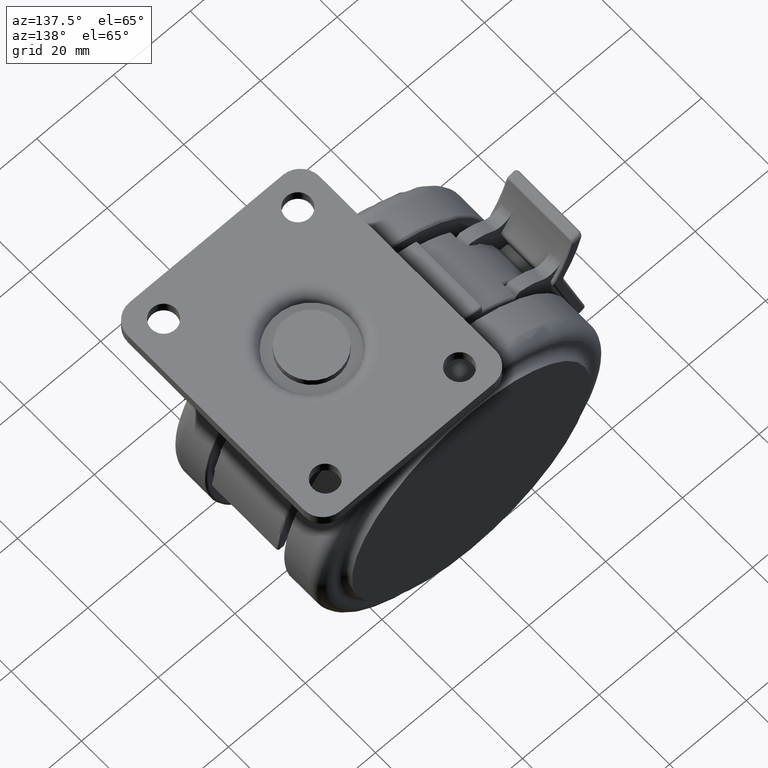
[diagram: clean part render]
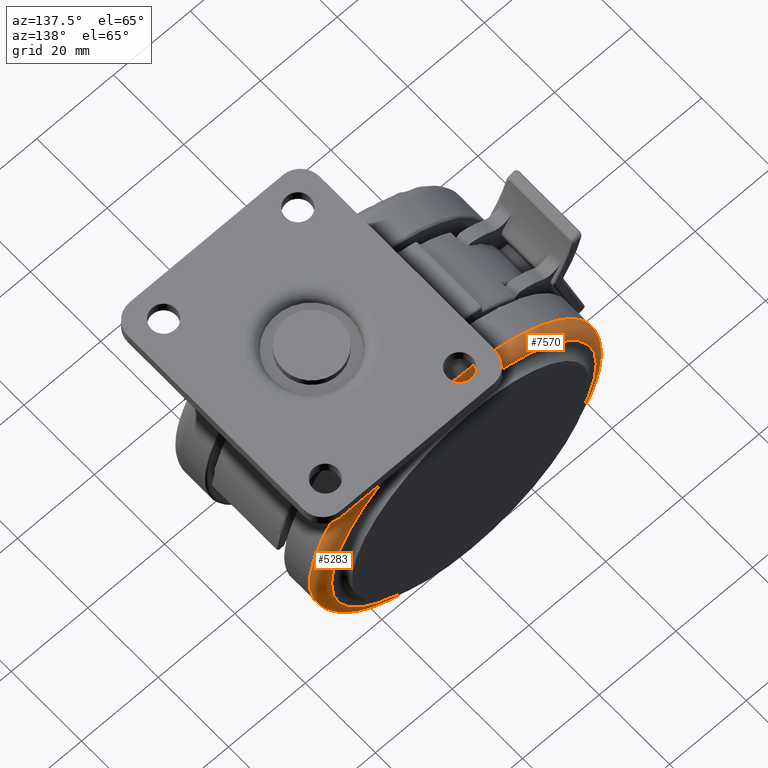
[diagram: same view with one multi-face feature highlighted, each face labeled with its STEP entity id]
A machine part, auxiliary view. The highlighted faces form ONE feature: a constant-radius fillet chain: 2 tangent blend faces with common blend radius 3 mm. The faces share edges in the B-rep.
Their STEP definitions:
[1] entity #7570 (Torus):
#105 = CARTESIAN_POINT ( 'NONE',  ( -20.00000000000000000, 18.50000000000000000, -78.00000000000001400 ) ) ;
#208 = CARTESIAN_POINT ( 'NONE',  ( -20.00000000000000400, 18.50000000000000000, -3.000000000000000400 ) ) ;
#523 = CARTESIAN_POINT ( 'NONE',  ( -20.00000000000000000, 18.50000000000000000, -75.00000000000001400 ) ) ;
#1100 = AXIS2_PLACEMENT_3D ( 'NONE', #8015, #5899, #3820 ) ;
#1233 = DIRECTION ( 'NONE',  ( 1.156482317317871700E-015, 1.000000000000000000, 0.0000000000000000000 ) ) ;
#1311 = ORIENTED_EDGE ( 'NONE', *, *, #5224, .T. ) ;
#1803 = ORIENTED_EDGE ( 'NONE', *, *, #4070, .F. ) ;
#2438 = CIRCLE ( 'NONE', #2877, 37.50000000000000000 ) ;
#2441 = VERTEX_POINT ( 'NONE', #7446 ) ;
#2710 = CARTESIAN_POINT ( 'NONE',  ( -20.00000000000000000, 21.50000000000000000, -40.50000000000000000 ) ) ;
#2829 = VERTEX_POINT ( 'NONE', #5844 ) ;
#2877 = AXIS2_PLACEMENT_3D ( 'NONE', #7774, #3570, #8490 ) ;
#3210 = TOROIDAL_SURFACE ( 'NONE', #1100, 34.50000000000000000, 3.000000000000000000 ) ;
#3277 = EDGE_LOOP ( 'NONE', ( #4675, #1311, #8397, #1803 ) ) ;
#3295 = CIRCLE ( 'NONE', #3432, 34.50000000000000700 ) ;
#3338 = DIRECTION ( 'NONE',  ( -1.000000000000000000, 1.505161159488250100E-015, -1.224646799147353200E-016 ) ) ;
#3411 = DIRECTION ( 'NONE',  ( 0.0000000000000000000, 0.0000000000000000000, -1.000000000000000000 ) ) ;
#3432 = AXIS2_PLACEMENT_3D ( 'NONE', #2710, #7616, #3411 ) ;
#3570 = DIRECTION ( 'NONE',  ( -1.505161159488250100E-015, -1.000000000000000000, 0.0000000000000000000 ) ) ;
#3820 = DIRECTION ( 'NONE',  ( 0.0000000000000000000, 0.0000000000000000000, -1.000000000000000000 ) ) ;
#4070 = EDGE_CURVE ( 'NONE', #6059, #2441, #8981, .T. ) ;
#4675 = ORIENTED_EDGE ( 'NONE', *, *, #8753, .F. ) ;
#5224 = EDGE_CURVE ( 'NONE', #5571, #2829, #8747, .T. ) ;
#5443 = DIRECTION ( 'NONE',  ( 1.000000000000000000, -1.505161159488250100E-015, 0.0000000000000000000 ) ) ;
#5571 = VERTEX_POINT ( 'NONE', #208 ) ;
#5816 = EDGE_CURVE ( 'NONE', #2829, #2441, #3295, .T. ) ;
#5844 = CARTESIAN_POINT ( 'NONE',  ( -20.00000000000000400, 21.50000000000000000, -5.999999999999998200 ) ) ;
#5899 = DIRECTION ( 'NONE',  ( 1.505161159488250100E-015, 1.000000000000000000, 0.0000000000000000000 ) ) ;
#6038 = AXIS2_PLACEMENT_3D ( 'NONE', #523, #5443, #1233 ) ;
#6059 = VERTEX_POINT ( 'NONE', #105 ) ;
#7446 = CARTESIAN_POINT ( 'NONE',  ( -20.00000000000000000, 21.50000000000000000, -75.00000000000001400 ) ) ;
#7531 = CARTESIAN_POINT ( 'NONE',  ( -20.00000000000000400, 18.50000000000000000, -5.999999999999998200 ) ) ;
#7570 = ADVANCED_FACE ( 'NONE', ( #8818 ), #3210, .T. ) ;
#7616 = DIRECTION ( 'NONE',  ( -1.505161159488250100E-015, -1.000000000000000000, 0.0000000000000000000 ) ) ;
#7721 = AXIS2_PLACEMENT_3D ( 'NONE', #7531, #3338, #8244 ) ;
#7774 = CARTESIAN_POINT ( 'NONE',  ( -20.00000000000000000, 18.50000000000000000, -40.50000000000000000 ) ) ;
#8015 = CARTESIAN_POINT ( 'NONE',  ( -20.00000000000000000, 18.50000000000000000, -40.50000000000000000 ) ) ;
#8244 = DIRECTION ( 'NONE',  ( -1.156482317317871700E-015, -1.000000000000000000, 0.0000000000000000000 ) ) ;
#8397 = ORIENTED_EDGE ( 'NONE', *, *, #5816, .T. ) ;
#8490 = DIRECTION ( 'NONE',  ( 0.0000000000000000000, 0.0000000000000000000, -1.000000000000000000 ) ) ;
#8747 = CIRCLE ( 'NONE', #7721, 2.999999999999999100 ) ;
#8753 = EDGE_CURVE ( 'NONE', #5571, #6059, #2438, .T. ) ;
#8818 = FACE_OUTER_BOUND ( 'NONE', #3277, .T. ) ;
#8981 = CIRCLE ( 'NONE', #6038, 2.999999999999999100 ) ;
[2] entity #5283 (Torus):
#105 = CARTESIAN_POINT ( 'NONE',  ( -20.00000000000000000, 18.50000000000000000, -78.00000000000001400 ) ) ;
#208 = CARTESIAN_POINT ( 'NONE',  ( -20.00000000000000400, 18.50000000000000000, -3.000000000000000400 ) ) ;
#497 = CARTESIAN_POINT ( 'NONE',  ( -20.00000000000000000, 21.50000000000000000, -40.50000000000000000 ) ) ;
#523 = CARTESIAN_POINT ( 'NONE',  ( -20.00000000000000000, 18.50000000000000000, -75.00000000000001400 ) ) ;
#566 = DIRECTION ( 'NONE',  ( 1.505161159488250100E-015, 1.000000000000000000, 0.0000000000000000000 ) ) ;
#572 = ORIENTED_EDGE ( 'NONE', *, *, #5224, .F. ) ;
#640 = DIRECTION ( 'NONE',  ( 0.0000000000000000000, 0.0000000000000000000, -1.000000000000000000 ) ) ;
#920 = EDGE_CURVE ( 'NONE', #6059, #5571, #6273, .T. ) ;
#965 = AXIS2_PLACEMENT_3D ( 'NONE', #2666, #566, #6183 ) ;
#1045 = TOROIDAL_SURFACE ( 'NONE', #965, 34.50000000000000000, 3.000000000000000000 ) ;
#1207 = DIRECTION ( 'NONE',  ( 0.0000000000000000000, 0.0000000000000000000, -1.000000000000000000 ) ) ;
#1233 = DIRECTION ( 'NONE',  ( 1.156482317317871700E-015, 1.000000000000000000, 0.0000000000000000000 ) ) ;
#2441 = VERTEX_POINT ( 'NONE', #7446 ) ;
#2666 = CARTESIAN_POINT ( 'NONE',  ( -20.00000000000000000, 18.50000000000000000, -40.50000000000000000 ) ) ;
#2829 = VERTEX_POINT ( 'NONE', #5844 ) ;
#3338 = DIRECTION ( 'NONE',  ( -1.000000000000000000, 1.505161159488250100E-015, -1.224646799147353200E-016 ) ) ;
#3365 = ORIENTED_EDGE ( 'NONE', *, *, #4070, .T. ) ;
#3621 = EDGE_CURVE ( 'NONE', #2441, #2829, #4594, .T. ) ;
#4070 = EDGE_CURVE ( 'NONE', #6059, #2441, #8981, .T. ) ;
#4594 = CIRCLE ( 'NONE', #7791, 34.50000000000000700 ) ;
#4853 = DIRECTION ( 'NONE',  ( -1.505161159488250100E-015, -1.000000000000000000, 0.0000000000000000000 ) ) ;
#4949 = ORIENTED_EDGE ( 'NONE', *, *, #3621, .T. ) ;
#5224 = EDGE_CURVE ( 'NONE', #5571, #2829, #8747, .T. ) ;
#5283 = ADVANCED_FACE ( 'NONE', ( #8074 ), #1045, .T. ) ;
#5418 = DIRECTION ( 'NONE',  ( -1.505161159488250100E-015, -1.000000000000000000, 0.0000000000000000000 ) ) ;
#5443 = DIRECTION ( 'NONE',  ( 1.000000000000000000, -1.505161159488250100E-015, 0.0000000000000000000 ) ) ;
#5571 = VERTEX_POINT ( 'NONE', #208 ) ;
#5844 = CARTESIAN_POINT ( 'NONE',  ( -20.00000000000000400, 21.50000000000000000, -5.999999999999998200 ) ) ;
#5859 = CARTESIAN_POINT ( 'NONE',  ( -20.00000000000000000, 18.50000000000000000, -40.50000000000000000 ) ) ;
#6038 = AXIS2_PLACEMENT_3D ( 'NONE', #523, #5443, #1233 ) ;
#6059 = VERTEX_POINT ( 'NONE', #105 ) ;
#6183 = DIRECTION ( 'NONE',  ( 0.0000000000000000000, 0.0000000000000000000, -1.000000000000000000 ) ) ;
#6273 = CIRCLE ( 'NONE', #6475, 37.50000000000000000 ) ;
#6475 = AXIS2_PLACEMENT_3D ( 'NONE', #5859, #4853, #640 ) ;
#7446 = CARTESIAN_POINT ( 'NONE',  ( -20.00000000000000000, 21.50000000000000000, -75.00000000000001400 ) ) ;
#7531 = CARTESIAN_POINT ( 'NONE',  ( -20.00000000000000400, 18.50000000000000000, -5.999999999999998200 ) ) ;
#7721 = AXIS2_PLACEMENT_3D ( 'NONE', #7531, #3338, #8244 ) ;
#7791 = AXIS2_PLACEMENT_3D ( 'NONE', #497, #5418, #1207 ) ;
#8074 = FACE_OUTER_BOUND ( 'NONE', #8077, .T. ) ;
#8077 = EDGE_LOOP ( 'NONE', ( #572, #8108, #3365, #4949 ) ) ;
#8108 = ORIENTED_EDGE ( 'NONE', *, *, #920, .F. ) ;
#8244 = DIRECTION ( 'NONE',  ( -1.156482317317871700E-015, -1.000000000000000000, 0.0000000000000000000 ) ) ;
#8747 = CIRCLE ( 'NONE', #7721, 2.999999999999999100 ) ;
#8981 = CIRCLE ( 'NONE', #6038, 2.999999999999999100 ) ;